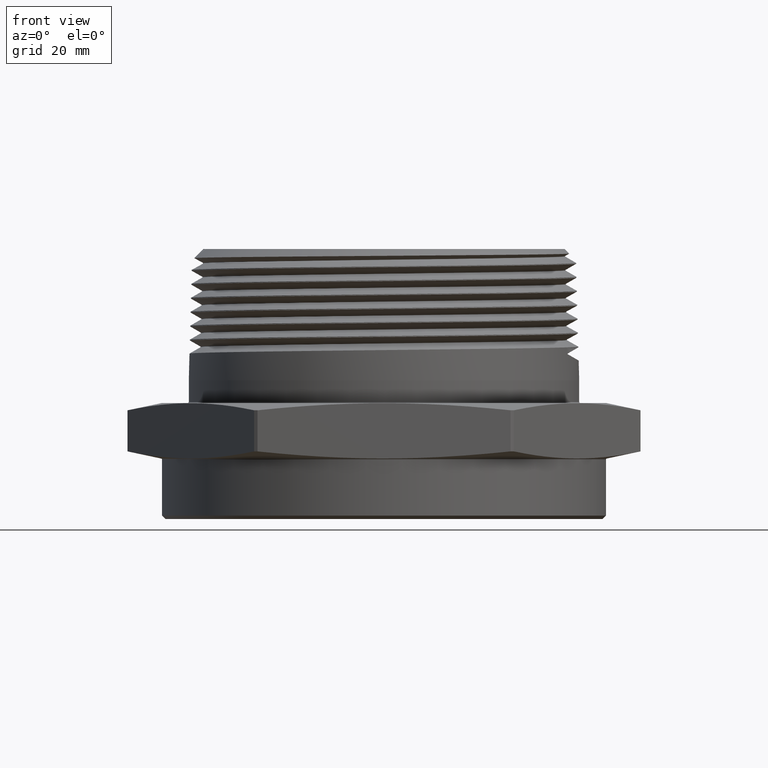
[diagram: clean part render]
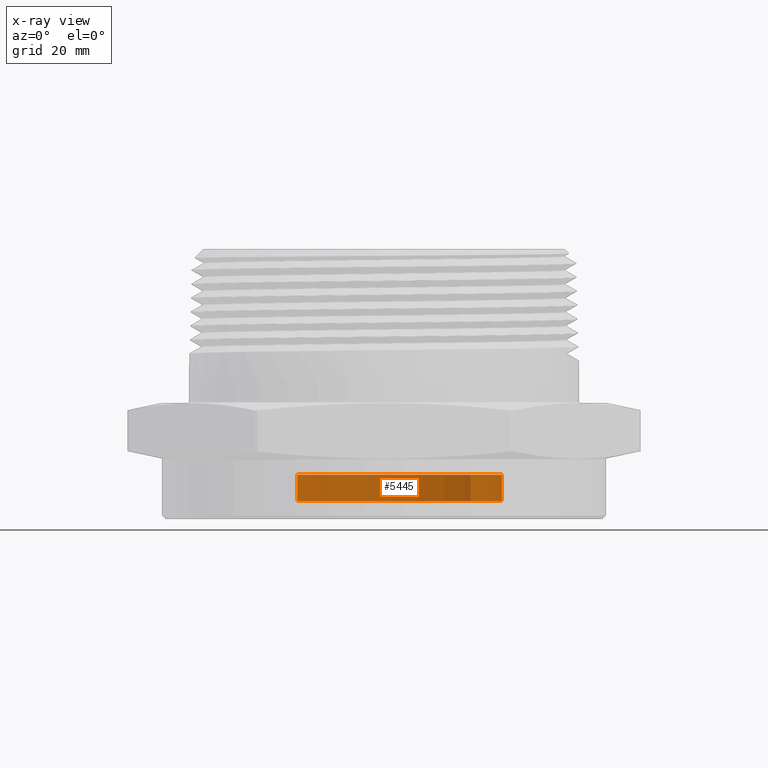
[diagram: x-ray — body ghosted, one internal face saturated and labeled with its STEP entity id]
A machine part, front view, then the same camera in x-ray: the body is ghosted and one INTERNAL B-rep face — a face not visible from any outside direction — is saturated and labeled: STEP entity #5445.
In plain terms, the highlighted cylindrical surface (partial cylindrical patch) has radius 26.924 mm, axis along (-0, 0, -1).
Its self-contained STEP definition (entity closure, byte-faithful):
#7 = ORIENTED_EDGE ( 'NONE', *, *, #1870, .T. ) ;
#8 = ORIENTED_EDGE ( 'NONE', *, *, #1872, .T. ) ;
#14 = ORIENTED_EDGE ( 'NONE', *, *, #1873, .F. ) ;
#28 = ORIENTED_EDGE ( 'NONE', *, *, #1866, .T. ) ;
#104 = CYLINDRICAL_SURFACE ( 'NONE', #935, 1.059999999999999800 ) ;
#105 = FACE_OUTER_BOUND ( 'NONE', #1726, .T. ) ;
#393 = CARTESIAN_POINT ( 'NONE',  ( 0.1166800539378845500, -0.1164497935006340600, 0.2749606299212598600 ) ) ;
#394 = DIRECTION ( 'NONE',  ( 0.0000000000000000000, 0.0000000000000000000, -1.000000000000000000 ) ) ;
#395 = DIRECTION ( 'NONE',  ( 1.000000000000000000, 0.0000000000000000000, 0.0000000000000000000 ) ) ;
#402 = CARTESIAN_POINT ( 'NONE',  ( 1.176680053937884300, -0.1164497935006339200, 0.3149606299212598400 ) ) ;
#403 = CARTESIAN_POINT ( 'NONE',  ( 0.1166800539378845500, -0.1164497935006340600, 0.03999999999999984800 ) ) ;
#404 = DIRECTION ( 'NONE',  ( -0.0000000000000000000, -0.0000000000000000000, 1.000000000000000000 ) ) ;
#405 = DIRECTION ( 'NONE',  ( 1.000000000000000000, 0.0000000000000000000, 0.0000000000000000000 ) ) ;
#406 = DIRECTION ( 'NONE',  ( -0.0000000000000000000, -0.0000000000000000000, -1.000000000000000000 ) ) ;
#407 = CARTESIAN_POINT ( 'NONE',  ( -0.9433199460621154400, -0.1164497935006340600, 0.3149606299212598400 ) ) ;
#408 = DIRECTION ( 'NONE',  ( -0.0000000000000000000, -0.0000000000000000000, -1.000000000000000000 ) ) ;
#935 = AXIS2_PLACEMENT_3D ( 'NONE', #4199, #5971, #5973 ) ;
#1726 = EDGE_LOOP ( 'NONE', ( #28, #8, #7, #14 ) ) ;
#1866 = EDGE_CURVE ( 'NONE', #8216, #8217, #7374, .T. ) ;
#1870 = EDGE_CURVE ( 'NONE', #8219, #8220, #7376, .T. ) ;
#1872 = EDGE_CURVE ( 'NONE', #8217, #8219, #7379, .T. ) ;
#1873 = EDGE_CURVE ( 'NONE', #8216, #8220, #7384, .T. ) ;
#2933 = AXIS2_PLACEMENT_3D ( 'NONE', #393, #394, #395 ) ;
#2935 = AXIS2_PLACEMENT_3D ( 'NONE', #403, #404, #405 ) ;
#4199 = CARTESIAN_POINT ( 'NONE',  ( 0.1166800539378845500, -0.1164497935006340600, 0.3149606299212598400 ) ) ;
#5445 = ADVANCED_FACE ( 'NONE', ( #105 ), #104, .T. ) ;
#5971 = DIRECTION ( 'NONE',  ( -0.0000000000000000000, -0.0000000000000000000, -1.000000000000000000 ) ) ;
#5973 = DIRECTION ( 'NONE',  ( -1.000000000000000000, 0.0000000000000000000, 0.0000000000000000000 ) ) ;
#6088 = CARTESIAN_POINT ( 'NONE',  ( -0.9433199460621154400, -0.1164497935006340600, 0.2749606299212598600 ) ) ;
#6089 = CARTESIAN_POINT ( 'NONE',  ( 1.176680053937884300, -0.1164497935006339200, 0.2749606299212598600 ) ) ;
#6091 = CARTESIAN_POINT ( 'NONE',  ( 1.176680053937884300, -0.1164497935006339200, 0.03999999999999984800 ) ) ;
#6092 = CARTESIAN_POINT ( 'NONE',  ( -0.9433199460621154400, -0.1164497935006340600, 0.03999999999999984800 ) ) ;
#7374 = CIRCLE ( 'NONE', #2933, 1.059999999999999800 ) ;
#7376 = CIRCLE ( 'NONE', #2935, 1.059999999999999800 ) ;
#7379 = LINE ( 'NONE', #402, #7385 ) ;
#7384 = LINE ( 'NONE', #407, #7387 ) ;
#7385 = VECTOR ( 'NONE', #406, 39.37007874015748100 ) ;
#7387 = VECTOR ( 'NONE', #408, 39.37007874015748100 ) ;
#8216 = VERTEX_POINT ( 'NONE', #6088 ) ;
#8217 = VERTEX_POINT ( 'NONE', #6089 ) ;
#8219 = VERTEX_POINT ( 'NONE', #6091 ) ;
#8220 = VERTEX_POINT ( 'NONE', #6092 ) ;